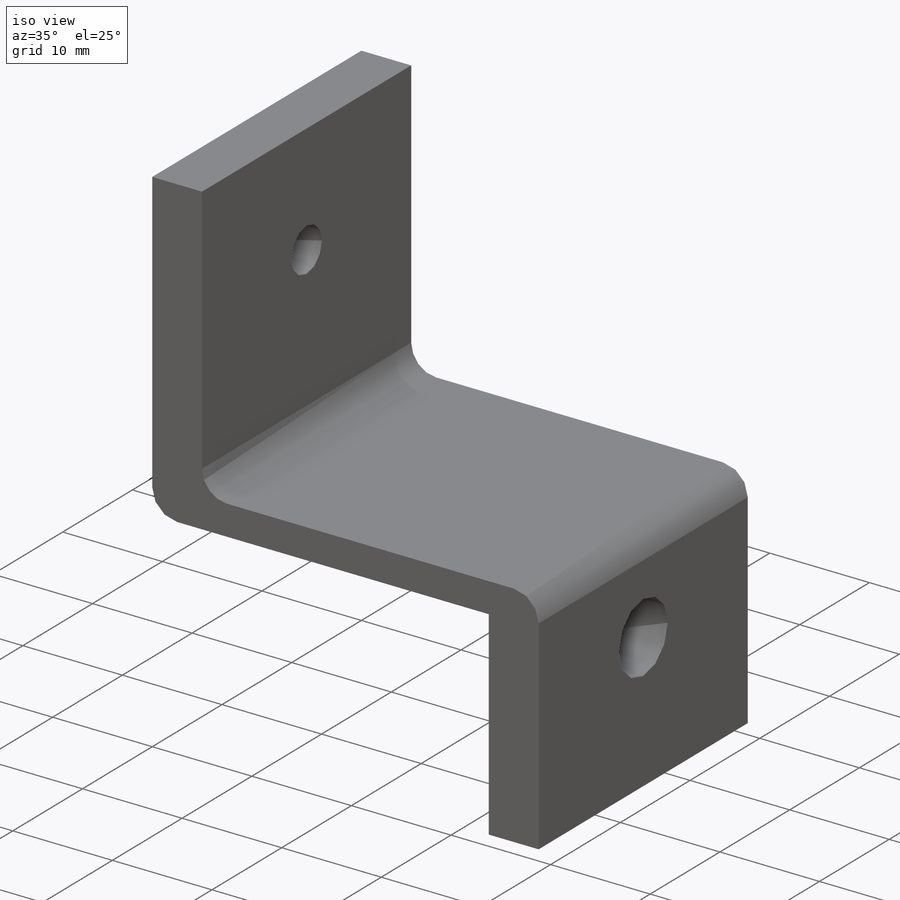
[diagram: iso view]
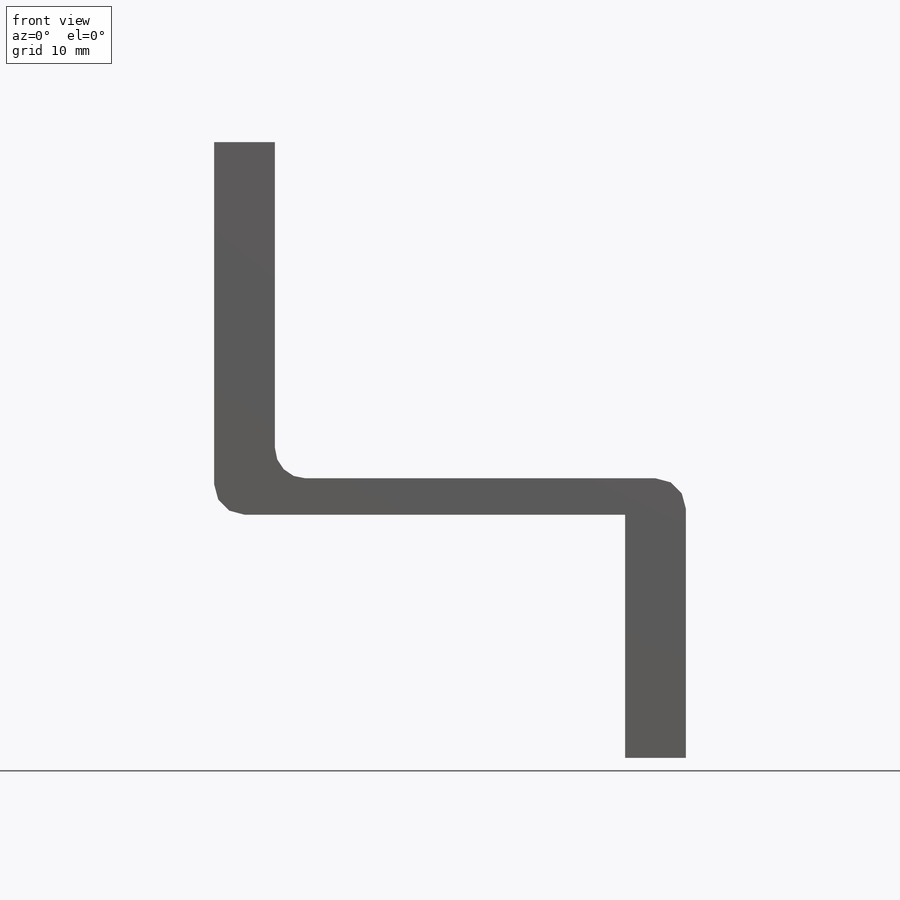
[diagram: front view]
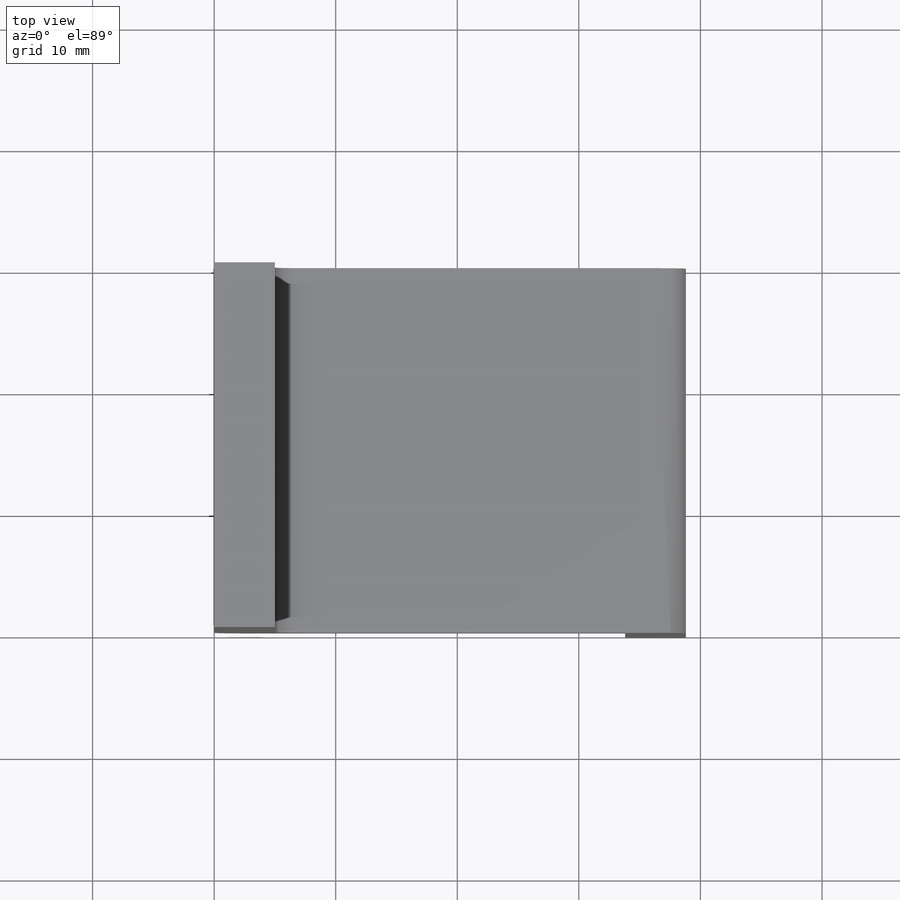
[diagram: top view]
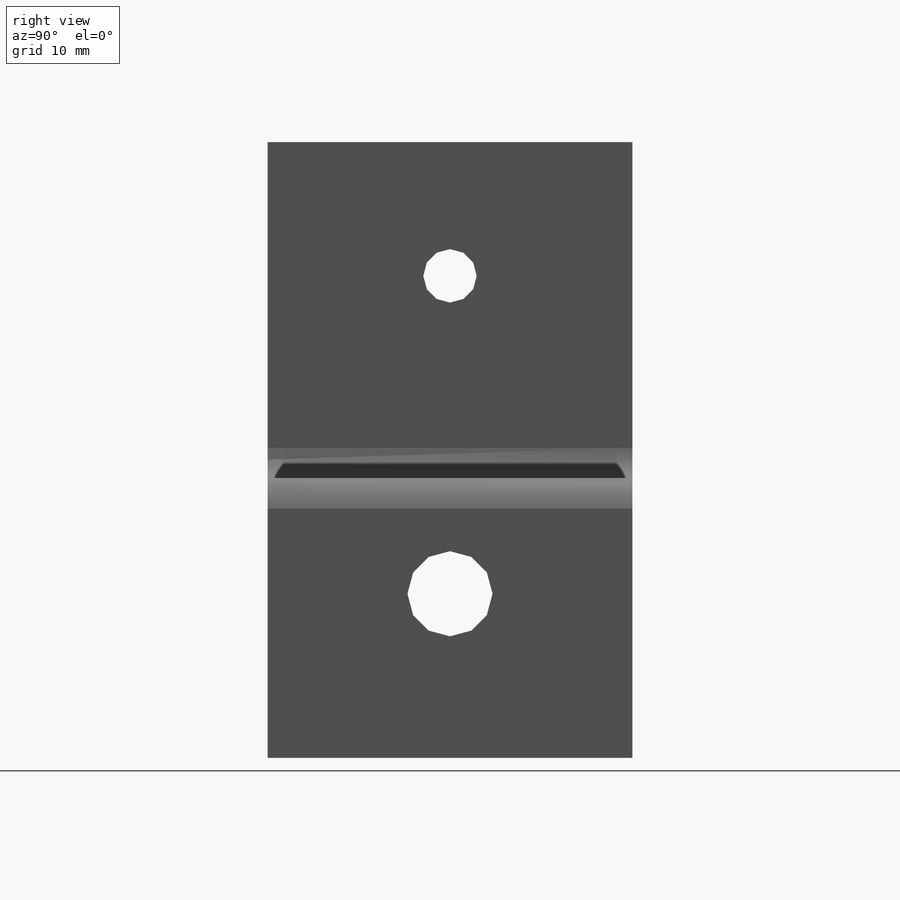
[diagram: right view]
SOLIDWORKS PART (.sldprt)
format: sldprt  version: not decoded by parser v0  size: 287,232 bytes
history: native  units: mm
features: sketch x6, hole x2, material x1, thread x1, cut_extrude x1, fillet x1 (+11 scaffold rows collapsed)
feature tree (23):
  scaffold x11  (default folders/planes/origin — collapsed)
  material  "6061-T6 Al"
  sketch  "Sketch1"  dims[c1.D1=30.65mm c1.D2=33.8mm c1.D3=20.0mm c2.D1=30.0mm c2.D5=5.0mm c2.D6=1.0mm c2.D7=1.5mm]
  hole  "Ø7.0 (7) Diameter Hole1"  Diameter=7mm Depth=38.8mm
  sketch  "3DSketch1"  dims[c1.D1=~8.77783mm c1.D2=10.15mm c2.D2=~16.129408mm c2.D3=15.0mm c3.D2=9.85mm c3.D3=9.85mm c3.D1=15.0mm c4.D2=6.5mm]
  sketch  "Sketch2"  dims[hole-wizard template sketch: 59 standard entries collapsed; hole parameters kept: c18.Thru Hole Dia.=7.0mm c18.Thru Hole Depth=38.8mm]
  hole  "Tapped Hole for #8-32 Helicoil1"  Diameter=4.3942mm Depth=5mm
  sketch  "3DSketch2"  dims[D1=15.0mm D2=11.0mm]
  sketch  "Sketch3"  dims[hole-wizard template sketch: 60 standard entries collapsed; hole parameters kept: c18.Thru Tap Drill Depth=5.0mm]
  thread  "Hole Thread1"  Diameter=5mm  [1 undecoded]
  sketch  "Sketch5"  dims[D1=2.0mm D2=0.0mm D3=10.0mm]
  cut_extrude  "Extrude1"  [1 undecoded]
  fillet  "Fillet1"  Radius=2.5mm
decode coverage: 10 of 11 modeling features carry decoded parameters
note: ~ marks probable driven/reference dimensions
note: 2 parameter values undecoded
note: suppression state not decoded; provenance and decode notes live in map.json
